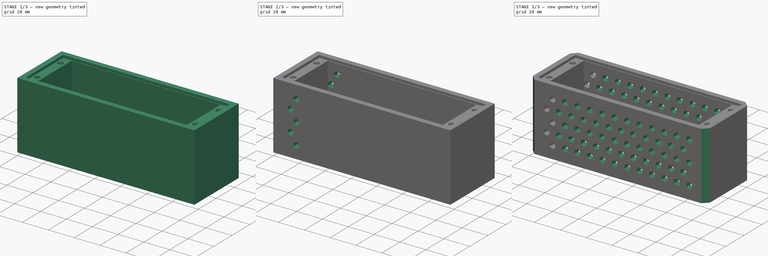
[diagram: build sequence overview — one tinted view per stage of 3, left to right]
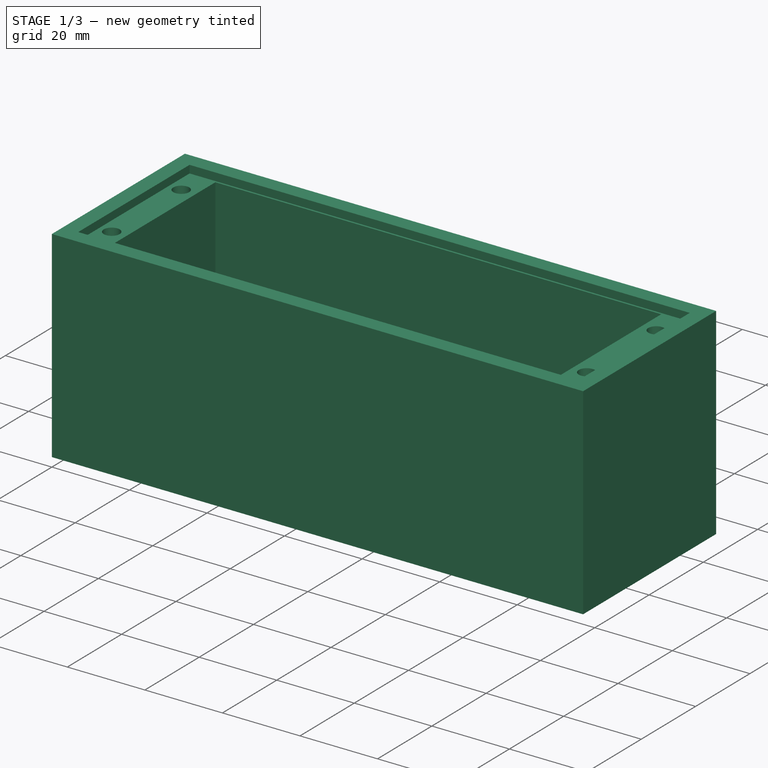
[diagram: stage 1 of 3 — iso view after this stage's code; geometry added in this stage tinted green]
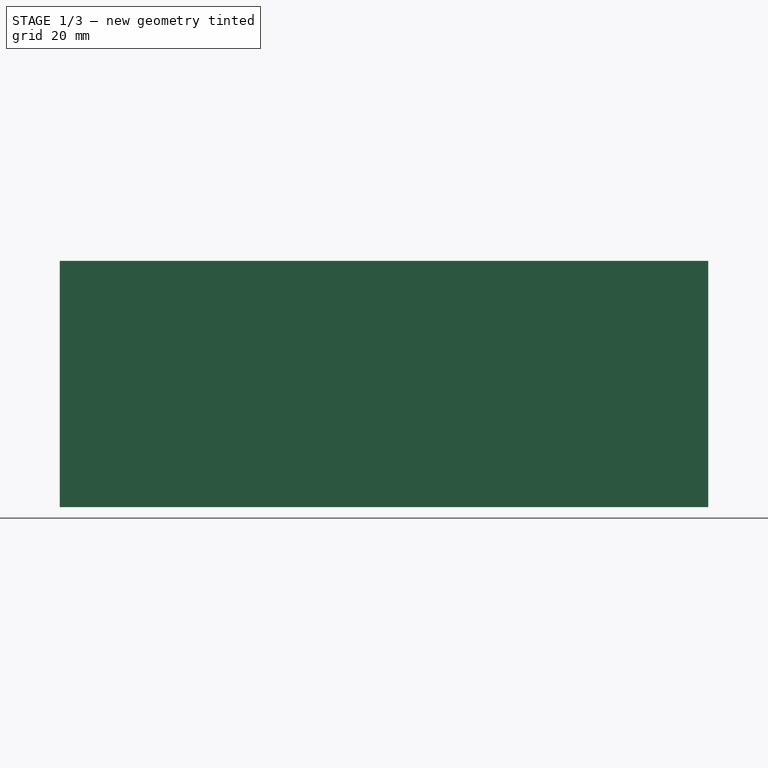
[diagram: stage 1 of 3 — front view after this stage's code; geometry added in this stage tinted green]
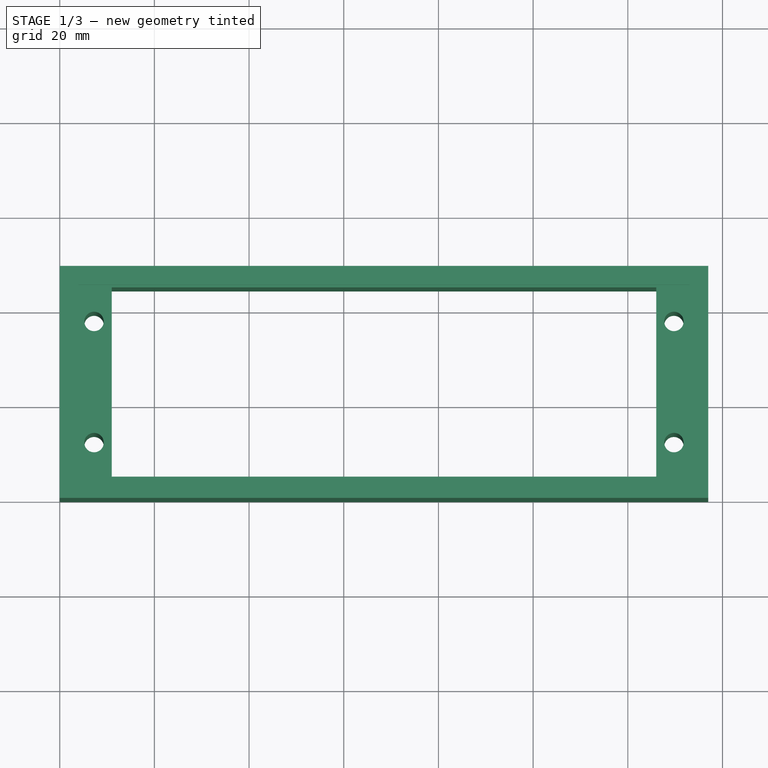
[diagram: stage 1 of 3 — top view after this stage's code; geometry added in this stage tinted green]
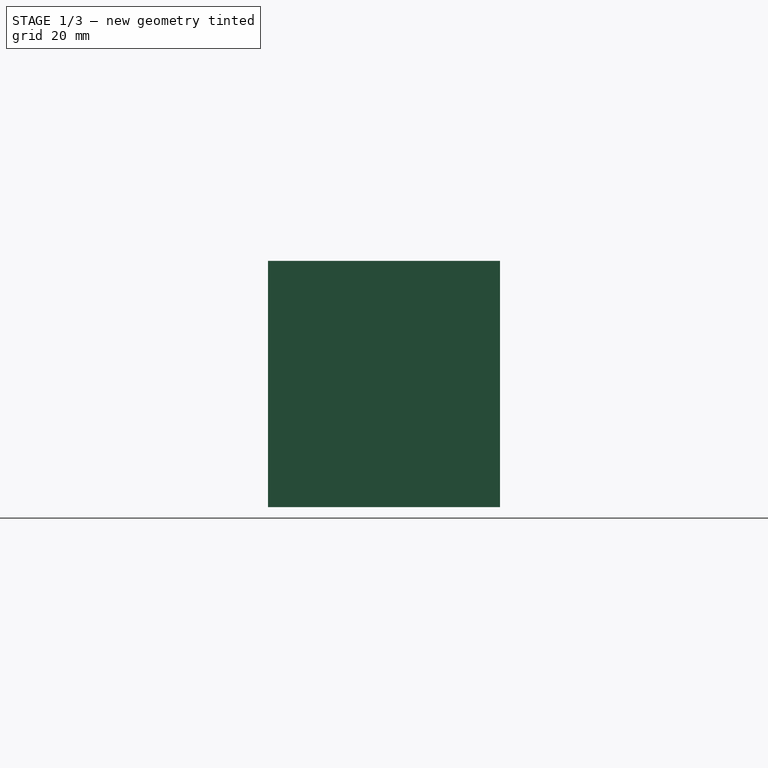
[diagram: stage 1 of 3 — right view after this stage's code; geometry added in this stage tinted green]
FCSTD DOCUMENT  (FreeCAD 0.20R29410 (Git))
Label: backup-modular-ii-end-piece
License: All rights reserved
LicenseURL: http://en.wikipedia.org/wiki/All_rights_reserved
objects: Sketcher::SketchObject×3, PartDesign::Pocket×2, PartDesign::Pad×1, PartDesign::LinearPattern×1, PartDesign::Chamfer×1, PartDesign::Body×1
note: 13 computed .brp shape members not serialized (recipe doc carries the construction recipe); baked Part::Feature solids carry a one-line shape summary decoded from their .brp

FEATURE [Sketcher::SketchObject] Sketch
  FullyConstrained = true
  MapMode = 5
  Support = -> [XY_Plane]
  sketch-geometry (23):
    g0: LineSegment StartX=4 StartY=4 StartZ=0 EndX=133 EndY=4 EndZ=0
    g1: LineSegment StartX=133 StartY=4 StartZ=0 EndX=133 EndY=45 EndZ=0
    g2: LineSegment StartX=133 StartY=45 StartZ=0 EndX=4 EndY=45 EndZ=0
    g3: LineSegment StartX=4 StartY=45 StartZ=0 EndX=4 EndY=4 EndZ=0
    g4: LineSegment StartX=0 StartY=0 StartZ=0 EndX=137 EndY=0 EndZ=0
    g5: LineSegment StartX=137 StartY=0 StartZ=0 EndX=137 EndY=49 EndZ=0
    g6: LineSegment StartX=137 StartY=49 StartZ=0 EndX=0 EndY=49 EndZ=0
    g7: LineSegment StartX=0 StartY=49 StartZ=0 EndX=0 EndY=0 EndZ=0
    g8: LineSegment StartX=7.25 StartY=45 StartZ=0 EndX=7.25 EndY=4 EndZ=0
    g9: LineSegment StartX=129.75 StartY=4 StartZ=0 EndX=129.75 EndY=45 EndZ=0
    g10: Circle CenterX=7.25 CenterY=11.7 CenterZ=0 NormalX=0 NormalY=0 NormalZ=1 AngleXU=0 Radius=2.05
    g11: Circle CenterX=129.75 CenterY=11.7 CenterZ=0 NormalX=0 NormalY=0 NormalZ=1 AngleXU=0 Radius=2.05
    g12: Circle CenterX=7.25 CenterY=32.02 CenterZ=0 NormalX=0 NormalY=0 NormalZ=1 AngleXU=0 Radius=2.05
    g13: Circle CenterX=129.75 CenterY=32.02 CenterZ=0 NormalX=0 NormalY=0 NormalZ=1 AngleXU=0 Radius=2.05
    g14: Circle CenterX=7.25 CenterY=37.3 CenterZ=0 NormalX=0 NormalY=0 NormalZ=1 AngleXU=0 Radius=2.05
    g15: Circle CenterX=129.75 CenterY=37.3 CenterZ=0 NormalX=0 NormalY=0 NormalZ=1 AngleXU=0 Radius=2.05
    g16: LineSegment StartX=11 StartY=44.5 StartZ=0 EndX=126 EndY=44.5 EndZ=0
    g17: LineSegment StartX=126 StartY=44.5 StartZ=0 EndX=126 EndY=4.5 EndZ=0
    g18: LineSegment StartX=126 StartY=4.5 StartZ=0 EndX=11 EndY=4.5 EndZ=0
    g19: LineSegment StartX=11 StartY=4.5 StartZ=0 EndX=11 EndY=44.5 EndZ=0
    g20: LineSegment StartX=7.25 StartY=11.7 StartZ=0 EndX=129.75 EndY=11.7 EndZ=0
    g21: LineSegment StartX=7.25 StartY=32.02 StartZ=0 EndX=129.75 EndY=32.02 EndZ=0
    g22: LineSegment StartX=129.75 StartY=37.3 StartZ=0 EndX=7.25 EndY=37.3 EndZ=0
  constraints (67):
    c: Coincident(g0,g1)
    c: Coincident(g1,g2)
    c: Coincident(g2,g3)
    c: Coincident(g3,g0)
    c: Horizontal(g0)
    c: Horizontal(g2)
    c: Vertical(g1)
    c: Vertical(g3)
    c: Distance(g0) = 129
    c: Distance(g3) = 41
    c: DistanceX(g0) = 4
    c: DistanceY(g0) = 4
    c: Coincident(g4,g5)
    c: Coincident(g5,g6)
    c: Coincident(g6,g7)
    c: Coincident(g7,g4)
    c: Horizontal(g4)
    c: Horizontal(g6)
    c: Vertical(g5)
    c: Vertical(g7)
    c: Coincident(g4,g-1)
    c: Distance(g0,g5) = 4
    c: Distance(g2,g6) = 4
    c: PointOnObject(g8,g2)
    c: PointOnObject(g8,g0)
    c: Vertical(g8)
    c: PointOnObject(g9,g0)
    c: Vertical(g9)
    c: PointOnObject(g9,g2)
    c: Distance(g9,g1) = 3.25
    c: Distance(g8,g3) = 3.25
    c: PointOnObject(g10,g8)
    c: PointOnObject(g11,g9)
    c: PointOnObject(g12,g8)
    c: PointOnObject(g13,g9)
    c: PointOnObject(g14,g8)
    c: PointOnObject(g15,g9)
    c: Equal(g10,g12)
    c: Equal(g12,g14)
    c: Equal(g14,g11)
    c: Equal(g11,g13)
    c: Equal(g13,g15)
    c: Coincident(g16,g17)
    c: Coincident(g17,g18)
    c: Coincident(g18,g19)
    c: Coincident(g19,g16)
    c: Horizontal(g16)
    c: Horizontal(g18)
    c: Vertical(g17)
    c: Vertical(g19)
    c: Distance(g16,g2) = 0.5
    c: Distance(g18,g0) = 0.5
    c: Distance(g16,g3) = 7
    c: Distance(g16,g1) = 7
    c: Distance(g10,g0) = 7.7
    c: Coincident(g20,g10)
    c: Coincident(g20,g11)
    c: Horizontal(g20)
    c: Diameter(g10) = 4.1
    c: Coincident(g21,g12)
    c: Coincident(g21,g13)
    c: Horizontal(g21)
    c: Coincident(g22,g15)
    c: Coincident(g22,g14)
    c: Horizontal(g22)
    c: Distance(g12,g20) = 20.32
    c: Distance(g14,g2) = 7.7
FEATURE [PartDesign::Pad] Pad
  Direction = (0,0,1)
  Length = 52
  Length2 = 10
  Profile = -> Sketch
  ReferenceAxis = -> Sketch [N_Axis]
  Reversed = true
  Type = 0
FEATURE [Sketcher::SketchObject] Sketch001
  FullyConstrained = true
  MapMode = 5
  Support = -> [XY_Plane]
  sketch-geometry (23):
    g0: LineSegment StartX=4 StartY=4 StartZ=0 EndX=133 EndY=4 EndZ=0
    g1: LineSegment StartX=133 StartY=4 StartZ=0 EndX=133 EndY=45 EndZ=0
    g2: LineSegment StartX=133 StartY=45 StartZ=0 EndX=4 EndY=45 EndZ=0
    g3: LineSegment StartX=4 StartY=45 StartZ=0 EndX=4 EndY=4 EndZ=0
    g4: LineSegment StartX=0 StartY=0 StartZ=0 EndX=137 EndY=0 EndZ=0
    g5: LineSegment StartX=137 StartY=0 StartZ=0 EndX=137 EndY=49 EndZ=0
    g6: LineSegment StartX=137 StartY=49 StartZ=0 EndX=0 EndY=49 EndZ=0
    g7: LineSegment StartX=0 StartY=49 StartZ=0 EndX=0 EndY=0 EndZ=0
    g8: LineSegment StartX=7.25 StartY=45 StartZ=0 EndX=7.25 EndY=4 EndZ=0
    g9: LineSegment StartX=129.75 StartY=4 StartZ=0 EndX=129.75 EndY=45 EndZ=0
    g10: Circle CenterX=7.25 CenterY=11.5 CenterZ=0 NormalX=0 NormalY=0 NormalZ=1 AngleXU=0 Radius=2.05
    g11: Circle CenterX=129.75 CenterY=11.5 CenterZ=0 NormalX=0 NormalY=0 NormalZ=1 AngleXU=0 Radius=2.05
    g12: Circle CenterX=7.25 CenterY=31.82 CenterZ=0 NormalX=0 NormalY=0 NormalZ=1 AngleXU=0 Radius=2.05
    g13: Circle CenterX=129.75 CenterY=31.82 CenterZ=0 NormalX=0 NormalY=0 NormalZ=1 AngleXU=0 Radius=2.05
    g14: Circle CenterX=7.25 CenterY=36.9 CenterZ=0 NormalX=0 NormalY=0 NormalZ=1 AngleXU=0 Radius=2.05
    g15: Circle CenterX=129.75 CenterY=36.9 CenterZ=0 NormalX=0 NormalY=0 NormalZ=1 AngleXU=0 Radius=2.05
    g16: LineSegment StartX=11 StartY=44.5 StartZ=0 EndX=126 EndY=44.5 EndZ=0
    g17: LineSegment StartX=126 StartY=44.5 StartZ=0 EndX=126 EndY=4.5 EndZ=0
    g18: LineSegment StartX=126 StartY=4.5 StartZ=0 EndX=11 EndY=4.5 EndZ=0
    g19: LineSegment StartX=11 StartY=4.5 StartZ=0 EndX=11 EndY=44.5 EndZ=0
    g20: LineSegment StartX=7.25 StartY=11.5 StartZ=0 EndX=129.75 EndY=11.5 EndZ=0
    g21: LineSegment StartX=7.25 StartY=31.82 StartZ=0 EndX=129.75 EndY=31.82 EndZ=0
    g22: LineSegment StartX=129.75 StartY=36.9 StartZ=0 EndX=7.25 EndY=36.9 EndZ=0
  constraints (67):
    c: Coincident(g0,g1)
    c: Coincident(g1,g2)
    c: Coincident(g2,g3)
    c: Coincident(g3,g0)
    c: Horizontal(g0)
    c: Horizontal(g2)
    c: Vertical(g1)
    c: Vertical(g3)
    c: Distance(g0) = 129
    c: Distance(g3) = 41
    c: DistanceX(g0) = 4
    c: DistanceY(g0) = 4
    c: Coincident(g4,g5)
    c: Coincident(g5,g6)
    c: Coincident(g6,g7)
    c: Coincident(g7,g4)
    c: Horizontal(g4)
    c: Horizontal(g6)
    c: Vertical(g5)
    c: Vertical(g7)
    c: Coincident(g4,g-1)
    c: Distance(g0,g5) = 4
    c: Distance(g2,g6) = 4
    c: PointOnObject(g8,g2)
    c: PointOnObject(g8,g0)
    c: Vertical(g8)
    c: PointOnObject(g9,g0)
    c: Vertical(g9)
    c: PointOnObject(g9,g2)
    c: Distance(g9,g1) = 3.25
    c: Distance(g8,g3) = 3.25
    c: PointOnObject(g10,g8)
    c: PointOnObject(g11,g9)
    c: PointOnObject(g12,g8)
    c: PointOnObject(g13,g9)
    c: PointOnObject(g14,g8)
    c: PointOnObject(g15,g9)
    c: Equal(g10,g12)
    c: Equal(g12,g14)
    c: Equal(g14,g11)
    c: Equal(g11,g13)
    c: Equal(g13,g15)
    c: Coincident(g16,g17)
    c: Coincident(g17,g18)
    c: Coincident(g18,g19)
    c: Coincident(g19,g16)
    c: Horizontal(g16)
    c: Horizontal(g18)
    c: Vertical(g17)
    c: Vertical(g19)
    c: Distance(g16,g2) = 0.5
    c: Distance(g18,g0) = 0.5
    c: Distance(g16,g3) = 7
    c: Distance(g16,g1) = 7
    c: Distance(g10,g0) = 7.5
    c: Coincident(g20,g10)
    c: Coincident(g20,g11)
    c: Horizontal(g20)
    c: Diameter(g10) = 4.1
    c: Coincident(g21,g12)
    c: Coincident(g21,g13)
    c: Horizontal(g21)
    c: Coincident(g22,g15)
    c: Coincident(g22,g14)
    c: Horizontal(g22)
    c: Distance(g12,g20) = 20.32
    c: Distance(g14,g20) = 25.4
FEATURE [PartDesign::Pocket] Pocket
  BaseFeature = -> Pad
  Direction = (0,0,-1)
  Length = 2
  Length2 = 5
  Profile = -> Sketch001
  ReferenceAxis = -> Sketch001 [N_Axis]
  Type = 0
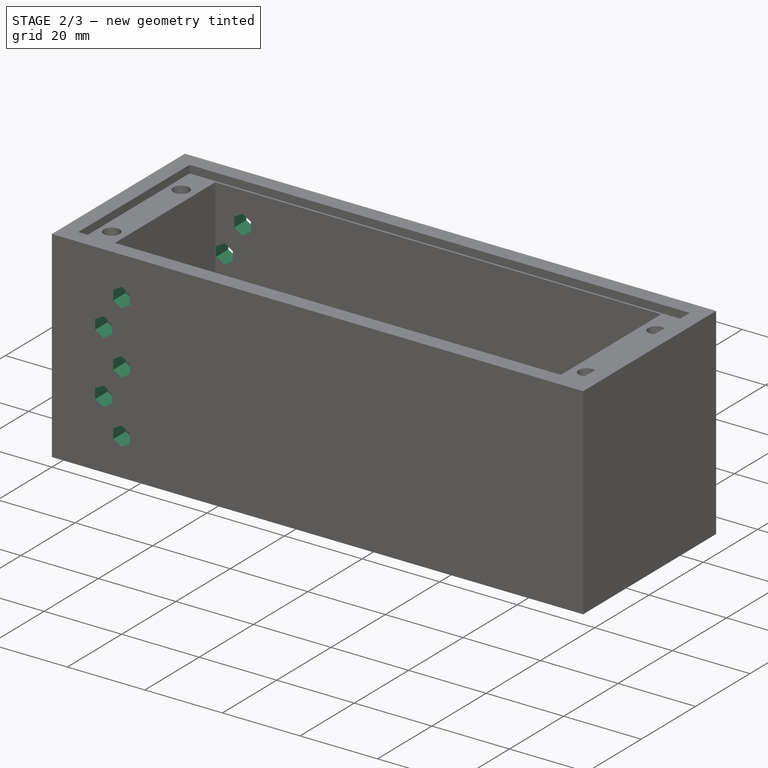
[diagram: stage 2 of 3 — iso view after this stage's code; geometry added in this stage tinted green]
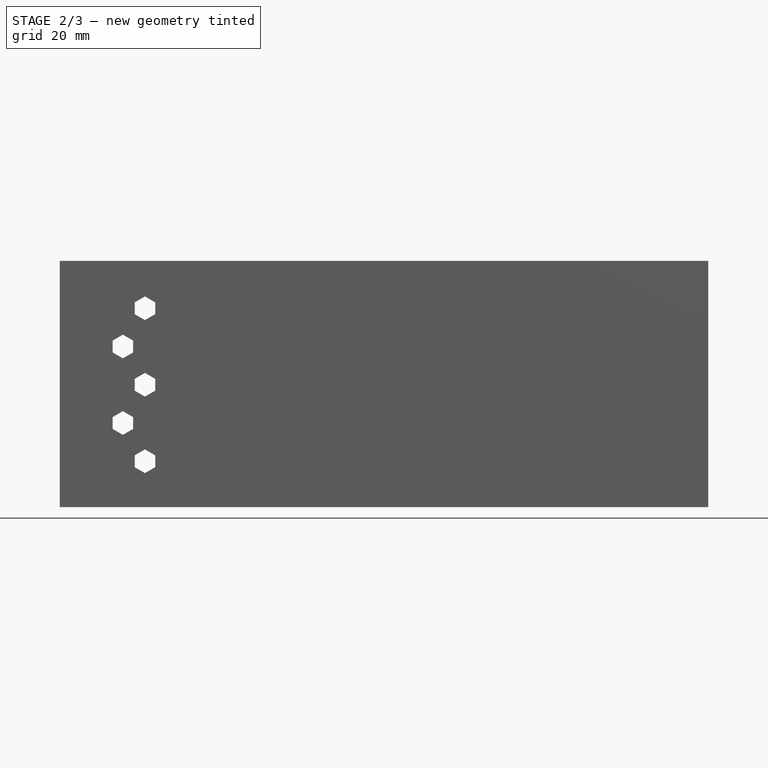
[diagram: stage 2 of 3 — front view after this stage's code; geometry added in this stage tinted green]
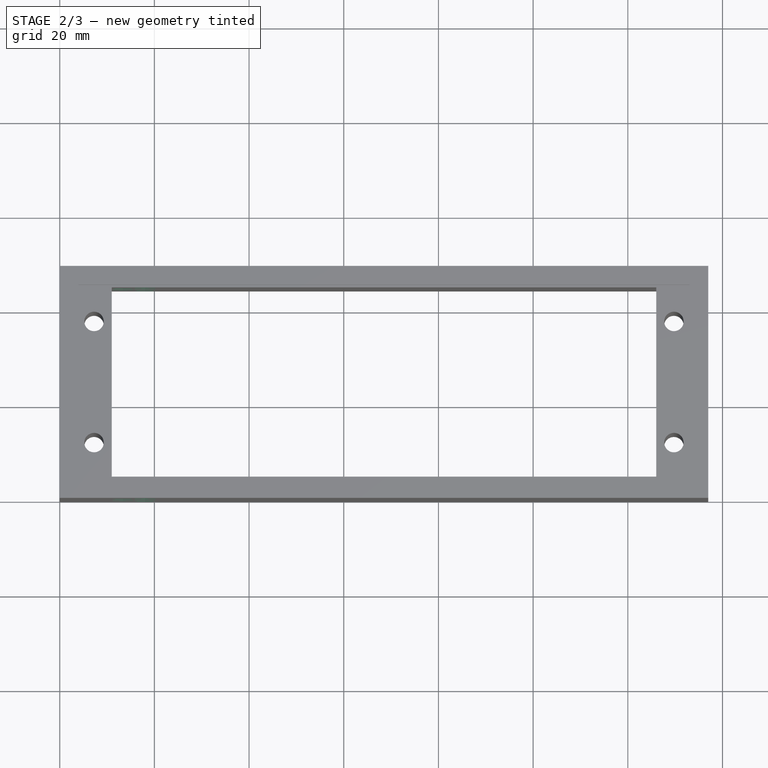
[diagram: stage 2 of 3 — top view after this stage's code; geometry added in this stage tinted green]
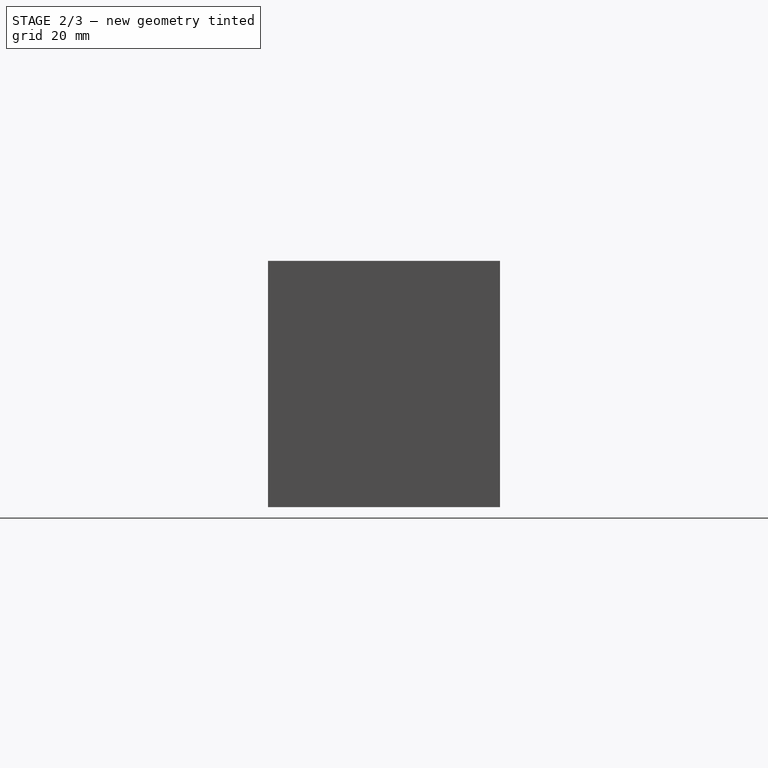
[diagram: stage 2 of 3 — right view after this stage's code; geometry added in this stage tinted green]
FEATURE [Sketcher::SketchObject] Sketch002
  FullyConstrained = true
  MapMode = 5
  Placement = pos=(0,0,0) rot=(1,0,0;1.5708rad)
  Support = -> [XZ_Plane]
  sketch-geometry (39):
    g0: LineSegment StartX=18 StartY=-12.5 StartZ=0 EndX=20.1651 EndY=-11.25 EndZ=0
    g1: LineSegment StartX=20.1651 StartY=-11.25 StartZ=0 EndX=20.1651 EndY=-8.75 EndZ=0
    g2: LineSegment StartX=20.1651 StartY=-8.75 StartZ=0 EndX=18 EndY=-7.5 EndZ=0
    g3: LineSegment StartX=18 StartY=-7.5 StartZ=0 EndX=15.8349 EndY=-8.75 EndZ=0
    g4: LineSegment StartX=15.8349 StartY=-8.75 StartZ=0 EndX=15.8349 EndY=-11.25 EndZ=0
    g5: LineSegment StartX=15.8349 StartY=-11.25 StartZ=0 EndX=18 EndY=-12.5 EndZ=0
    g6: Circle CenterX=18 CenterY=-10 CenterZ=0 NormalX=0 NormalY=0 NormalZ=1 AngleXU=0 Radius=2.5
    g7: LineSegment StartX=15.5 StartY=-19.3301 StartZ=0 EndX=15.5 EndY=-16.8301 EndZ=0
    g8: LineSegment StartX=15.5 StartY=-16.8301 StartZ=0 EndX=13.3349 EndY=-15.5801 EndZ=0
    g9: LineSegment StartX=13.3349 StartY=-15.5801 StartZ=0 EndX=11.1699 EndY=-16.8301 EndZ=0
    g10: LineSegment StartX=11.1699 StartY=-16.8301 StartZ=0 EndX=11.1699 EndY=-19.3301 EndZ=0
    g11: LineSegment StartX=11.1699 StartY=-19.3301 StartZ=0 EndX=13.3349 EndY=-20.5801 EndZ=0
    g12: LineSegment StartX=13.3349 StartY=-20.5801 StartZ=0 EndX=15.5 EndY=-19.3301 EndZ=0
    g13: Circle CenterX=13.3349 CenterY=-18.0801 CenterZ=0 NormalX=0 NormalY=0 NormalZ=1 AngleXU=0 Radius=2.5
    g14: LineSegment StartX=15.5 StartY=-16.8301 StartZ=0 EndX=18 EndY=-12.5 EndZ=0
    g15: LineSegment StartX=20.1651 StartY=-27.4103 StartZ=0 EndX=20.1651 EndY=-24.9103 EndZ=0
    g16: LineSegment StartX=20.1651 StartY=-24.9103 StartZ=0 EndX=18 EndY=-23.6603 EndZ=0
    g17: LineSegment StartX=18 StartY=-23.6603 StartZ=0 EndX=15.8349 EndY=-24.9103 EndZ=0
    g18: LineSegment StartX=15.8349 StartY=-24.9103 StartZ=0 EndX=15.8349 EndY=-27.4103 EndZ=0
    g19: LineSegment StartX=15.8349 StartY=-27.4103 StartZ=0 EndX=18 EndY=-28.6603 EndZ=0
    g20: LineSegment StartX=18 StartY=-28.6603 StartZ=0 EndX=20.1651 EndY=-27.4103 EndZ=0
    g21: Circle CenterX=18 CenterY=-26.1603 CenterZ=0 NormalX=0 NormalY=0 NormalZ=1 AngleXU=0 Radius=2.5
    g22: LineSegment StartX=13.3349 StartY=-36.7404 StartZ=0 EndX=15.5 EndY=-35.4904 EndZ=0
    g23: LineSegment StartX=15.5 StartY=-35.4904 StartZ=0 EndX=15.5 EndY=-32.9904 EndZ=0
    g24: LineSegment StartX=15.5 StartY=-32.9904 StartZ=0 EndX=13.3349 EndY=-31.7404 EndZ=0
    g25: LineSegment StartX=13.3349 StartY=-31.7404 StartZ=0 EndX=11.1699 EndY=-32.9904 EndZ=0
    g26: LineSegment StartX=11.1699 StartY=-32.9904 StartZ=0 EndX=11.1699 EndY=-35.4904 EndZ=0
    g27: LineSegment StartX=11.1699 StartY=-35.4904 StartZ=0 EndX=13.3349 EndY=-36.7404 EndZ=0
    g28: Circle CenterX=13.3349 CenterY=-34.2404 CenterZ=0 NormalX=0 NormalY=0 NormalZ=1 AngleXU=0 Radius=2.5
    g29: LineSegment StartX=13.3349 StartY=-20.5801 StartZ=0 EndX=15.8349 EndY=-24.9103 EndZ=0
    g30: LineSegment StartX=15.8349 StartY=-27.4103 StartZ=0 EndX=13.3349 EndY=-31.7404 EndZ=0
    g31: LineSegment StartX=20.1651 StartY=-43.5705 StartZ=0 EndX=20.1651 EndY=-41.0705 EndZ=0
    g32: LineSegment StartX=20.1651 StartY=-41.0705 StartZ=0 EndX=18 EndY=-39.8205 EndZ=0
    g33: LineSegment StartX=18 StartY=-39.8205 StartZ=0 EndX=15.8349 EndY=-41.0705 EndZ=0
    g34: LineSegment StartX=15.8349 StartY=-41.0705 StartZ=0 EndX=15.8349 EndY=-43.5705 EndZ=0
    g35: LineSegment StartX=15.8349 StartY=-43.5705 StartZ=0 EndX=18 EndY=-44.8205 EndZ=0
    g36: LineSegment StartX=18 StartY=-44.8205 StartZ=0 EndX=20.1651 EndY=-43.5705 EndZ=0
    g37: Circle CenterX=18 CenterY=-42.3205 CenterZ=0 NormalX=0 NormalY=0 NormalZ=1 AngleXU=0 Radius=2.5
    g38: LineSegment StartX=13.3349 StartY=-36.7404 StartZ=0 EndX=15.8349 EndY=-41.0705 EndZ=0
  constraints (93):
    c: Coincident(g0,g1)
    c: Coincident(g1,g2)
    c: Coincident(g2,g3)
    c: Coincident(g3,g4)
    c: Coincident(g4,g5)
    c: Coincident(g5,g0)
    c: Equal(g0, g1-g5) x5
    c: PointOnObject(g0,g6)
    c: PointOnObject(g1,g6)
    c: PointOnObject(g2,g6)
    c: PointOnObject(g3,g6)
    c: PointOnObject(g4,g6)
    c: PointOnObject(g5,g6)
    c: Vertical(g4)
    c: DistanceX(g6) = 18
    c: DistanceY(g6) = -10
    c: Diameter(g6) = 5
    c: Coincident(g7,g8)
    c: Coincident(g8,g9)
    c: Coincident(g9,g10)
    c: Coincident(g10,g11)
    c: Coincident(g11,g12)
    c: Coincident(g12,g7)
    c: Equal(g7, g8-g12) x5
    c: PointOnObject(g7,g13)
    c: PointOnObject(g8,g13)
    c: PointOnObject(g9,g13)
    c: PointOnObject(g10,g13)
    c: PointOnObject(g11,g13)
    c: PointOnObject(g12,g13)
    c: Vertical(g7)
    c: Equal(g13,g6)
    c: Coincident(g14,g7)
    c: Coincident(g14,g0)
    c: Perpendicular(g14,g8)
    c: Distance(g14) = 5
    c: Coincident(g15,g16)
    c: Coincident(g16,g17)
    c: Coincident(g17,g18)
    c: Coincident(g18,g19)
    c: Coincident(g19,g20)
    c: Coincident(g20,g15)
    c: Equal(g15, g16-g20) x5
    c: PointOnObject(g15,g21)
    c: PointOnObject(g16,g21)
    c: PointOnObject(g17,g21)
    c: PointOnObject(g18,g21)
    c: PointOnObject(g19,g21)
    c: PointOnObject(g20,g21)
    c: Coincident(g22,g23)
    c: Coincident(g23,g24)
    c: Coincident(g24,g25)
    c: Coincident(g25,g26)
    c: Coincident(g26,g27)
    c: Coincident(g27,g22)
    c: Equal(g22, g23-g27) x5
    c: PointOnObject(g22,g28)
    c: PointOnObject(g23,g28)
    c: PointOnObject(g24,g28)
    c: PointOnObject(g25,g28)
    c: PointOnObject(g26,g28)
    c: PointOnObject(g27,g28)
    c: Vertical(g23)
    c: Vertical(g15)
    c: Equal(g21,g13)
    c: Equal(g13,g28)
    c: Coincident(g29,g11)
    c: Coincident(g29,g17)
    c: Coincident(g30,g18)
    c: Coincident(g30,g24)
    c: Perpendicular(g29,g17)
    c: Perpendicular(g19,g30)
    c: Equal(g30,g29)
    c: Equal(g29,g14)
    c: Coincident(g31,g32)
    c: Coincident(g32,g33)
    c: Coincident(g33,g34)
    c: Coincident(g34,g35)
    c: Coincident(g35,g36)
    c: Coincident(g36,g31)
    c: Equal(g31, g32-g36) x5
    c: PointOnObject(g31,g37)
    c: PointOnObject(g32,g37)
    c: PointOnObject(g33,g37)
    c: PointOnObject(g34,g37)
    c: PointOnObject(g35,g37)
    c: PointOnObject(g36,g37)
    c: Vertical(g34)
    c: Coincident(g38,g22)
    c: Coincident(g38,g33)
    c: Perpendicular(g38,g33)
    c: Equal(g28,g37)
    c: Equal(g38,g30)
FEATURE [PartDesign::Pocket] Pocket001
  BaseFeature = -> Pocket
  Direction = (0,1,-2e-16)
  Length = 5
  Length2 = 5
  Profile = -> Sketch002
  ReferenceAxis = -> Sketch002 [N_Axis]
  Type = 1
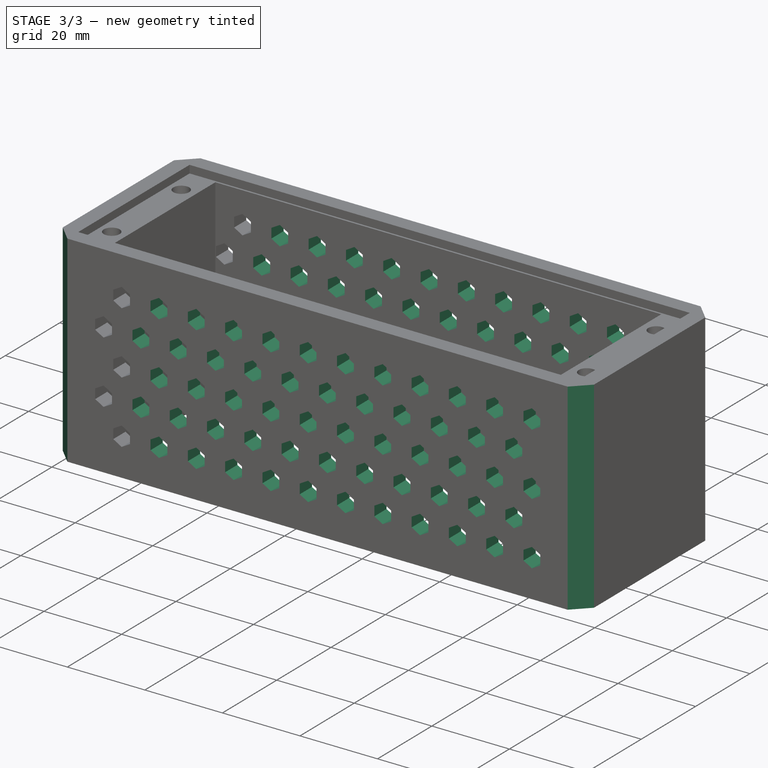
[diagram: stage 3 of 3 — iso view after this stage's code; geometry added in this stage tinted green]
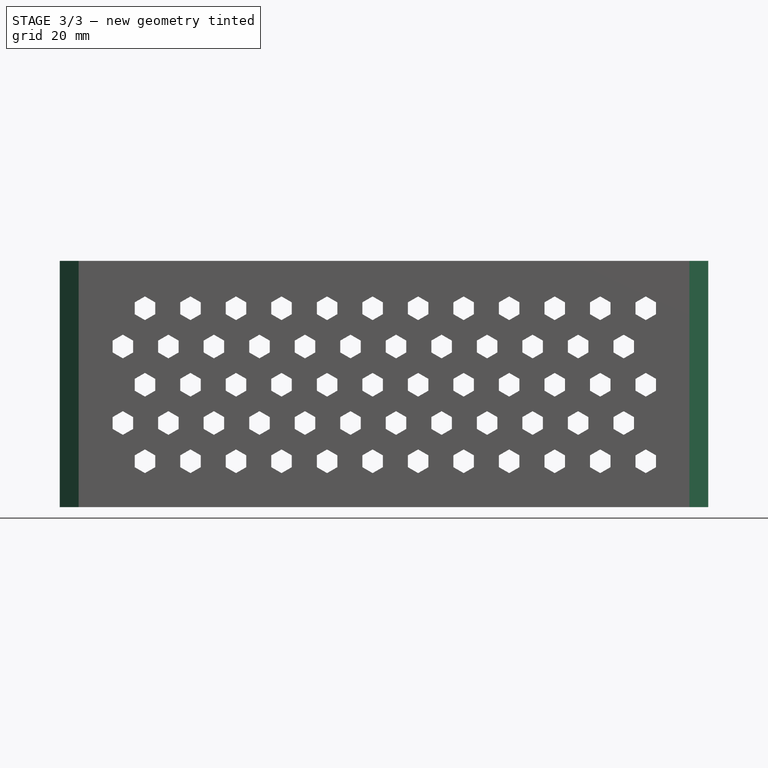
[diagram: stage 3 of 3 — front view after this stage's code; geometry added in this stage tinted green]
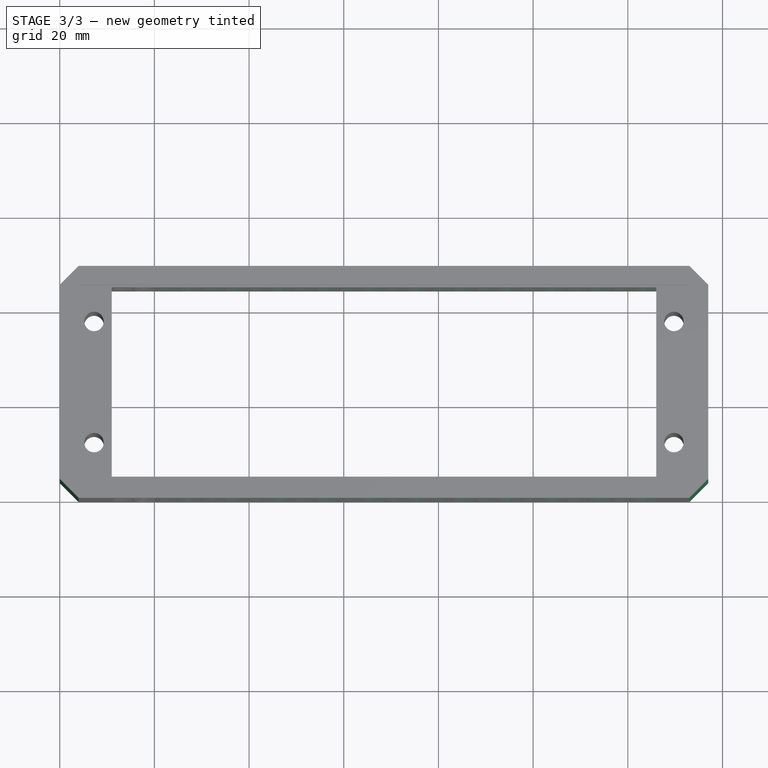
[diagram: stage 3 of 3 — top view after this stage's code; geometry added in this stage tinted green]
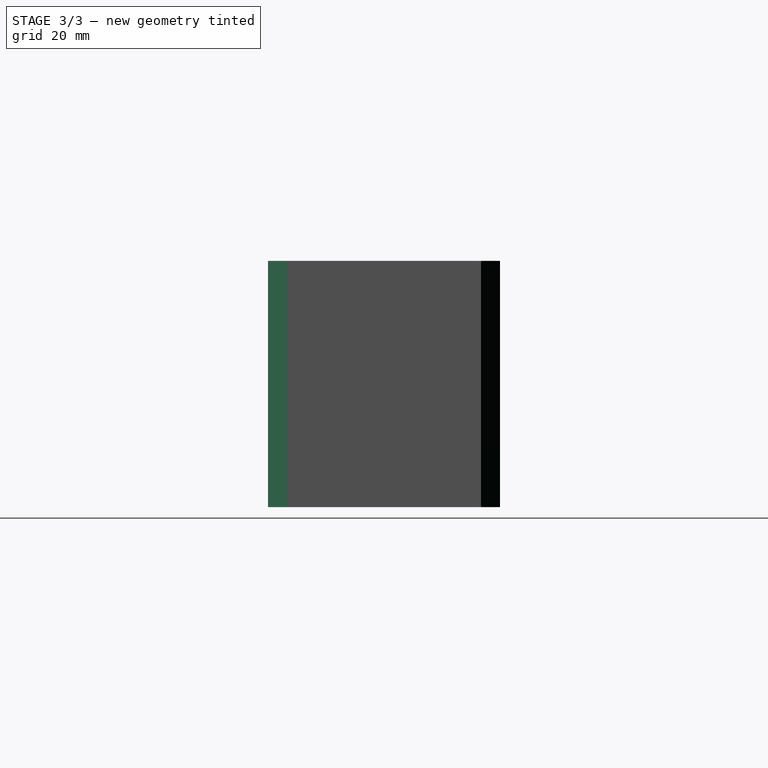
[diagram: stage 3 of 3 — right view after this stage's code; geometry added in this stage tinted green]
FEATURE [PartDesign::LinearPattern] LinearPattern
  BaseFeature = -> Pocket001
  Direction = -> Sketch002 [H_Axis]
  Length = 105.8
  Occurrences = 12
  Originals = -> [Pocket001]
FEATURE [PartDesign::Chamfer] Chamfer
  Angle = 45
  Base = -> LinearPattern [Edge1,Edge4,Edge365,Edge384]
  BaseFeature = -> LinearPattern
  ChamferType = 0
  FlipDirection = false
  Size = 4
  Size2 = 1
  SupportTransform = false
  UseAllEdges = false
FEATURE [PartDesign::Body] Body
  Group = -> [Sketch,Pad,Sketch001,Pocket,Sketch002,Pocket001,LinearPattern,Chamfer]
  Origin = -> Origin
  Tip = -> Chamfer
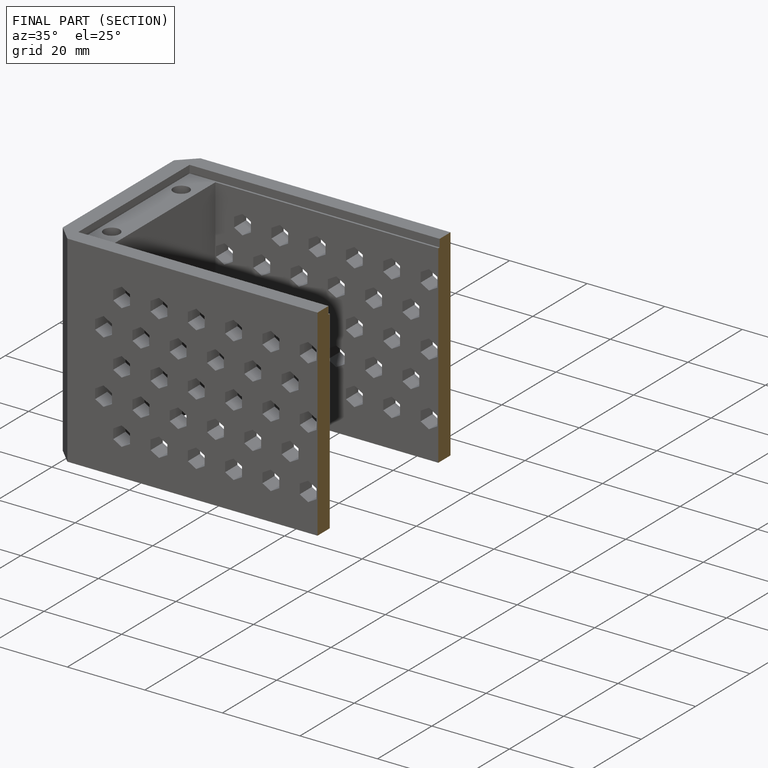
[diagram: finished part — half-section view (interior)]
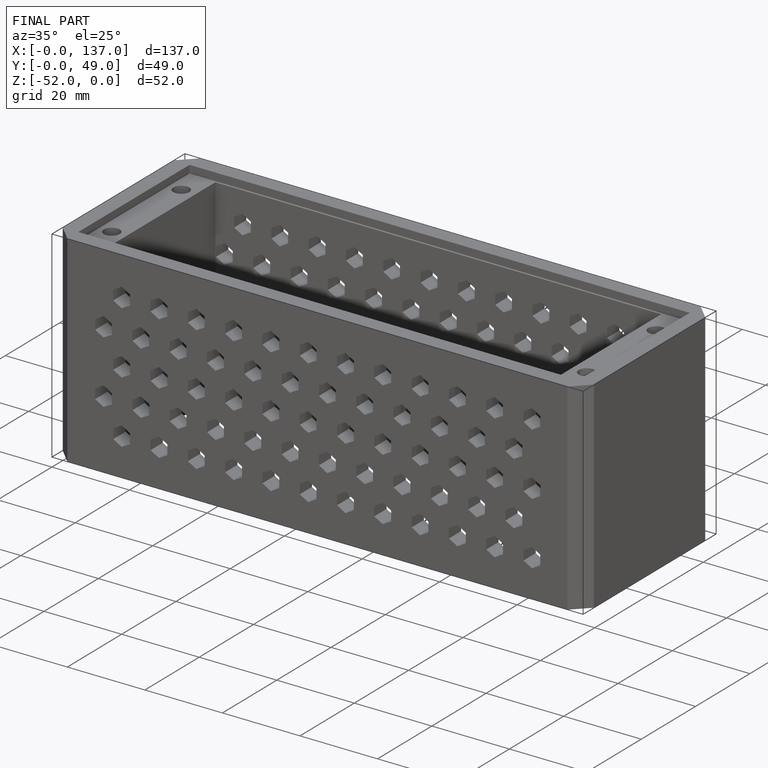
[diagram: finished part — iso view with bounding-box wireframe]
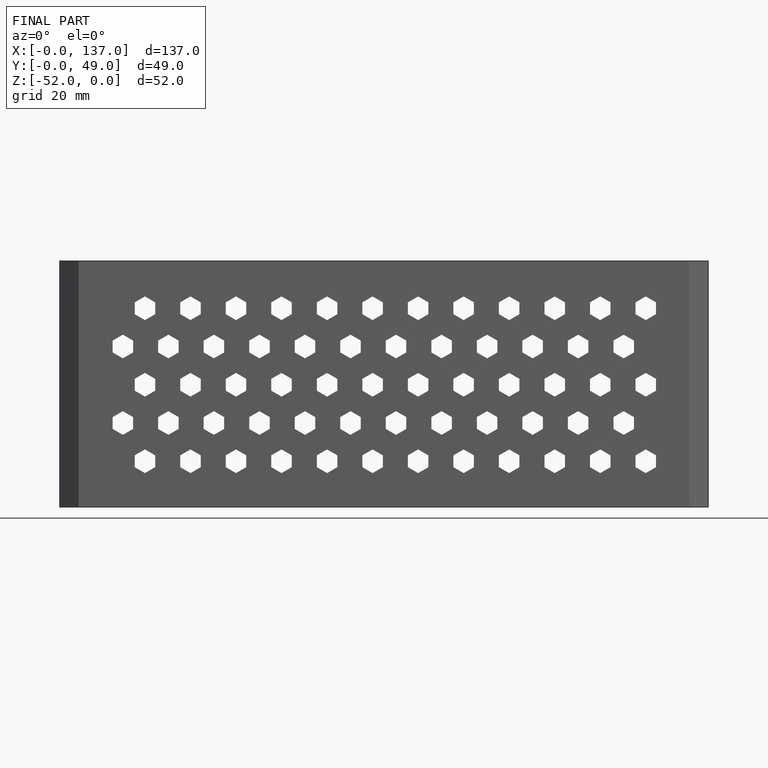
[diagram: finished part — front view with bounding-box wireframe]
